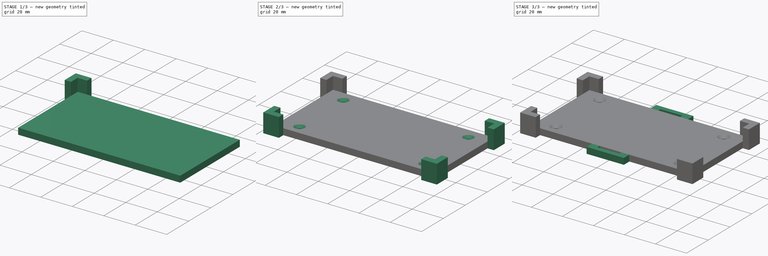
[diagram: build sequence overview — one tinted view per stage of 3, left to right]
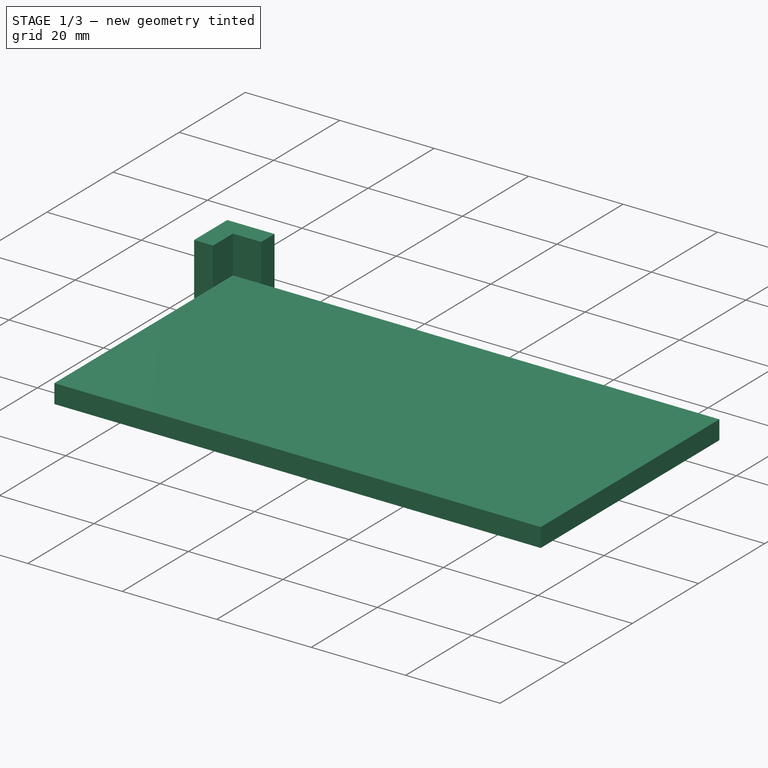
[diagram: stage 1 of 3 — iso view after this stage's code; geometry added in this stage tinted green]
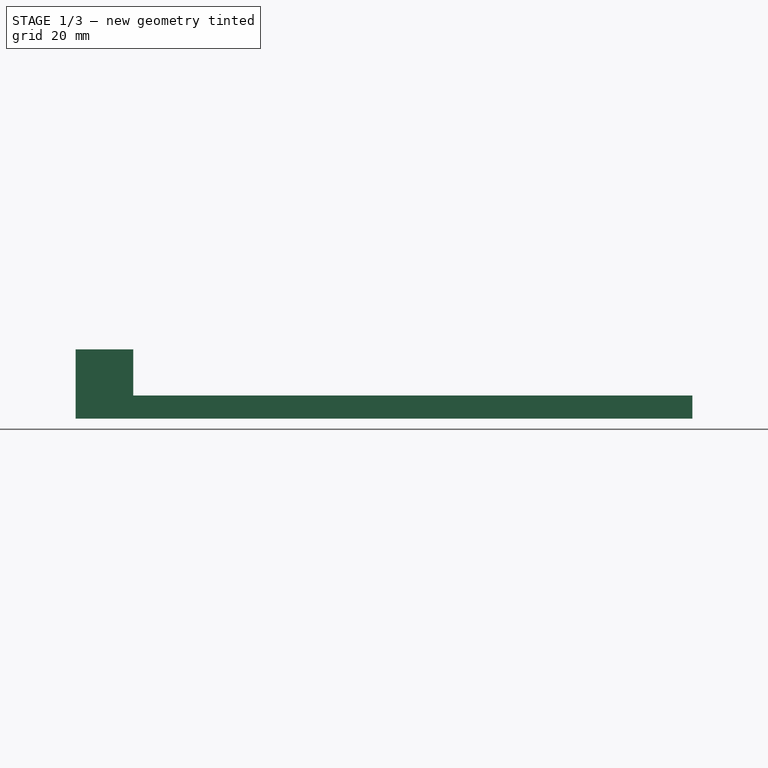
[diagram: stage 1 of 3 — front view after this stage's code; geometry added in this stage tinted green]
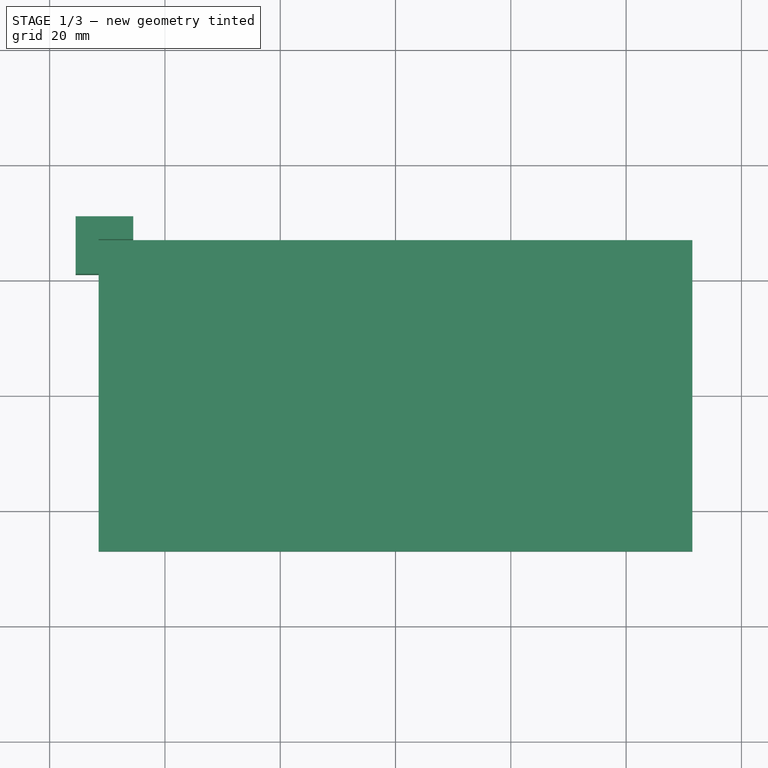
[diagram: stage 1 of 3 — top view after this stage's code; geometry added in this stage tinted green]
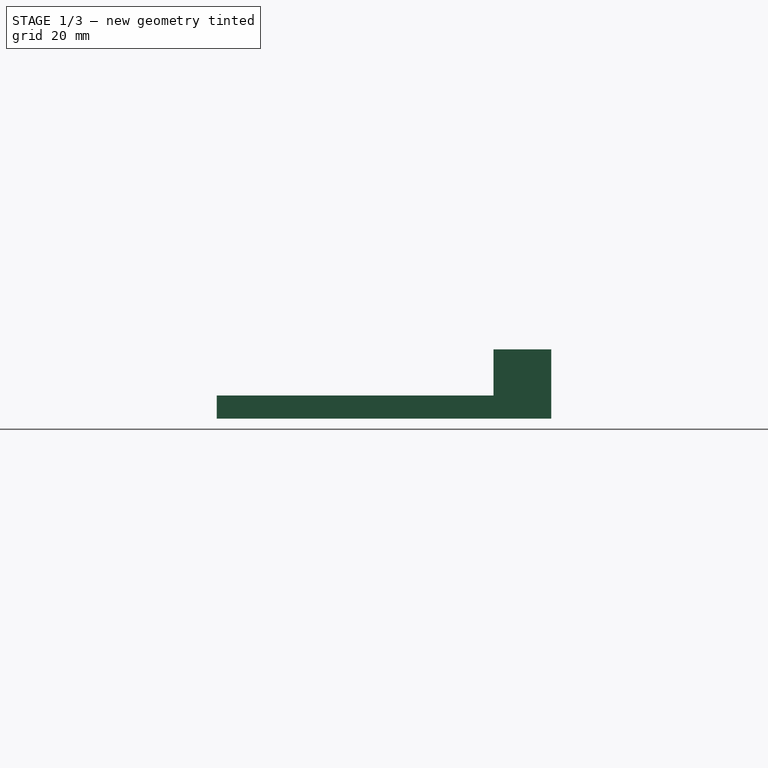
[diagram: stage 1 of 3 — right view after this stage's code; geometry added in this stage tinted green]
FCSTD DOCUMENT  (FreeCAD 0.19R24267 (Git))
Label: jlink-mount
License: All rights reserved
LicenseURL: http://en.wikipedia.org/wiki/All_rights_reserved
objects: Sketcher::SketchObject×4, PartDesign::Pad×3, PartDesign::Mirrored×2, PartDesign::PolarPattern×1, PartDesign::MultiTransform×1, PartDesign::Hole×1, PartDesign::Body×1
note: 17 computed .brp shape members not serialized (recipe doc carries the construction recipe); baked Part::Feature solids carry a one-line shape summary decoded from their .brp

FEATURE [Sketcher::SketchObject] Sketch
  FullyConstrained = true
  MapMode = 5
  Support = -> [XY_Plane]
  sketch-geometry (4):
    g0: LineSegment StartX=-51.5 StartY=-27 StartZ=0 EndX=51.5 EndY=-27 EndZ=0
    g1: LineSegment StartX=51.5 StartY=-27 StartZ=0 EndX=51.5 EndY=27 EndZ=0
    g2: LineSegment StartX=51.5 StartY=27 StartZ=0 EndX=-51.5 EndY=27 EndZ=0
    g3: LineSegment StartX=-51.5 StartY=27 StartZ=0 EndX=-51.5 EndY=-27 EndZ=0
  constraints (11):
    c: Coincident(g0,g1)
    c: Coincident(g1,g2)
    c: Coincident(g2,g3)
    c: Coincident(g3,g0)
    c: Horizontal(g0)
    c: Horizontal(g2)
    c: Vertical(g1)
    c: Vertical(g3)
    c: Symmetric(g0,g1,g-1)
    c: DistanceX(g2,g2) = 103
    c: DistanceY(g3,g3) = 54
FEATURE [PartDesign::Pad] Pad  label="plate"
  Direction = (1,1,1)
  Length = 4
  Length2 = 100
  Profile = -> Sketch
  Type = 0
FEATURE [Sketcher::SketchObject] Sketch001
  ExternalGeometry = -> [Sketch]
  FullyConstrained = true
  MapMode = 5
  Support = -> [XY_Plane]
  sketch-geometry (6):
    g0: LineSegment StartX=-51.5 StartY=21 StartZ=0 EndX=-51.5 EndY=27 EndZ=0
    g1: LineSegment StartX=-51.5 StartY=27 StartZ=0 EndX=-45.5 EndY=27 EndZ=0
    g2: LineSegment StartX=-45.5 StartY=27 StartZ=0 EndX=-45.5 EndY=31 EndZ=0
    g3: LineSegment StartX=-45.5 StartY=31 StartZ=0 EndX=-55.5 EndY=31 EndZ=0
    g4: LineSegment StartX=-55.5 StartY=31 StartZ=0 EndX=-55.5 EndY=21 EndZ=0
    g5: LineSegment StartX=-55.5 StartY=21 StartZ=0 EndX=-51.5 EndY=21 EndZ=0
  constraints (17):
    c: Vertical(g0)
    c: Coincident(g1,g0)
    c: Horizontal(g1)
    c: Vertical(g2)
    c: Horizontal(g3)
    c: Vertical(g4)
    c: Coincident(g5,g4)
    c: Coincident(g5,g0)
    c: Horizontal(g5)
    c: Coincident(g4,g3)
    c: Coincident(g3,g2)
    c: Coincident(g1,g2)
    c: Equal(g5,g2)
    c: Equal(g1,g0)
    c: DistanceY(g2,g2) = 4
    c: DistanceY(g0,g0) = 6
    c: Coincident(g-4,g0)
FEATURE [PartDesign::Pad] Pad001  label="corner"
  BaseFeature = -> Pad
  Direction = (1,1,1)
  Length = 12
  Length2 = 100
  Profile = -> Sketch001
  Type = 0
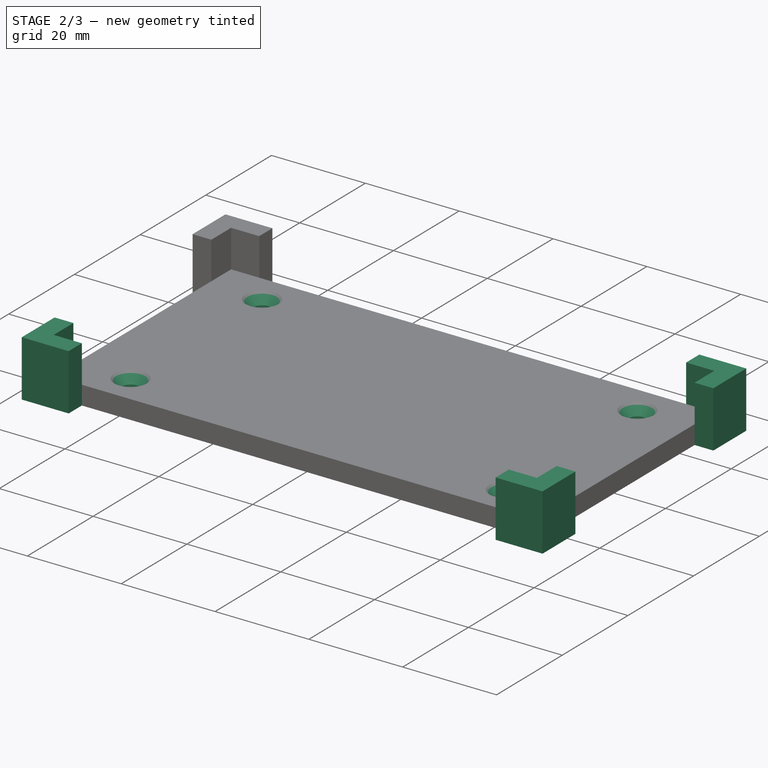
[diagram: stage 2 of 3 — iso view after this stage's code; geometry added in this stage tinted green]
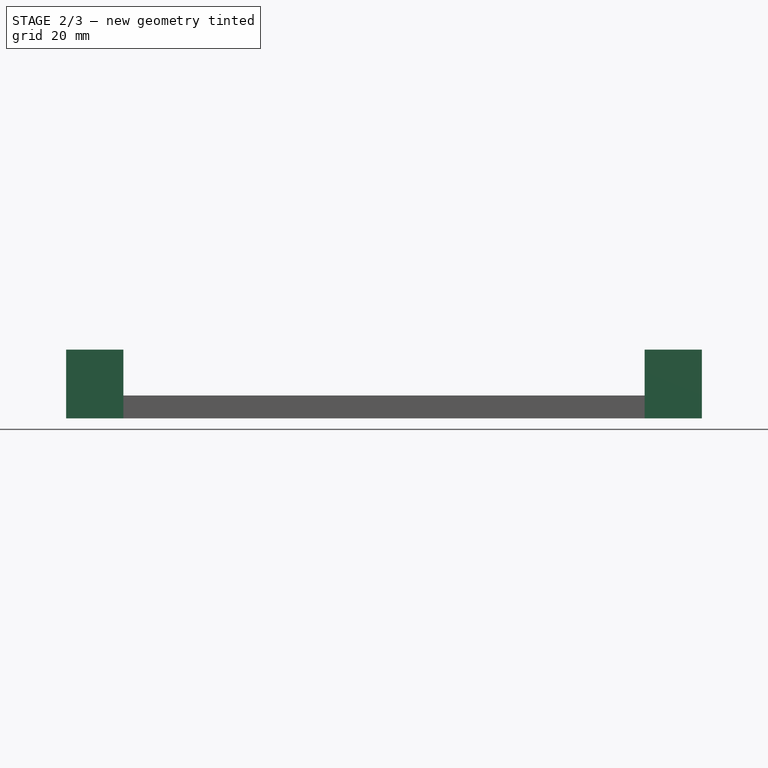
[diagram: stage 2 of 3 — front view after this stage's code; geometry added in this stage tinted green]
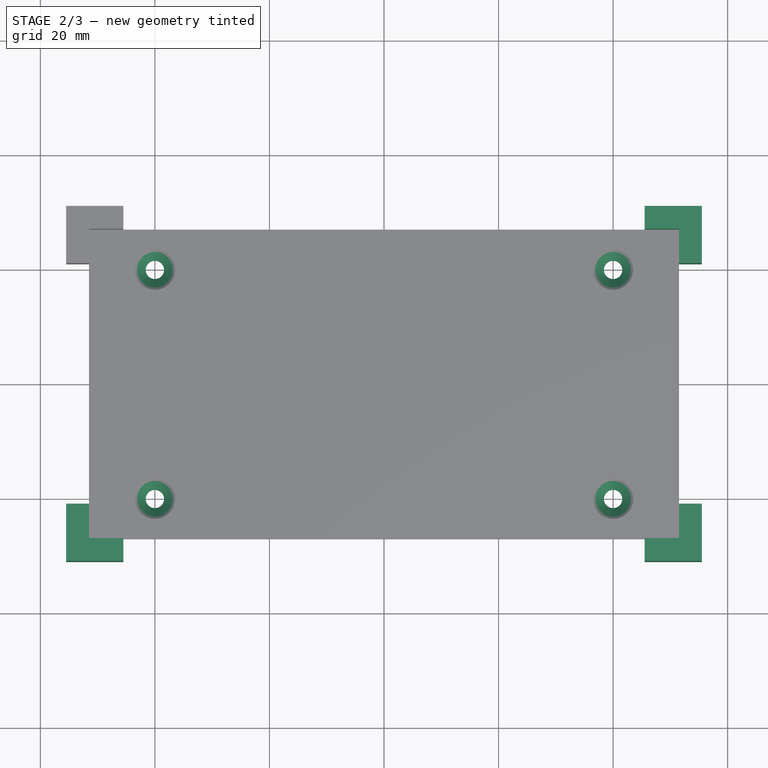
[diagram: stage 2 of 3 — top view after this stage's code; geometry added in this stage tinted green]
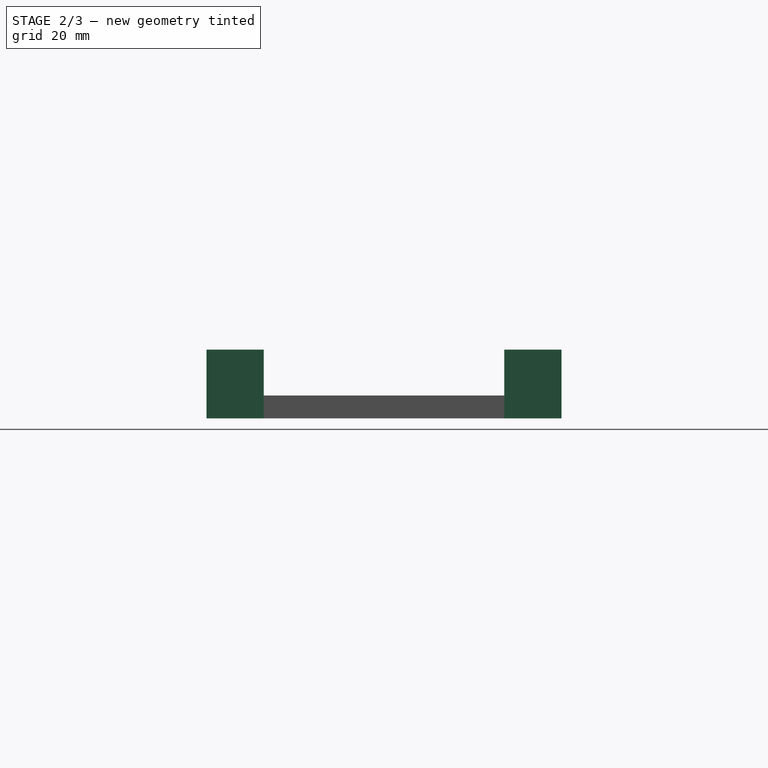
[diagram: stage 2 of 3 — right view after this stage's code; geometry added in this stage tinted green]
FEATURE [PartDesign::Mirrored] Mirrored
  MirrorPlane = -> Sketch001 [V_Axis]
FEATURE [PartDesign::PolarPattern] PolarPattern
  Angle = 360
  Axis = -> Sketch001 [N_Axis]
  Occurrences = 2
FEATURE [PartDesign::MultiTransform] MultiTransform
  BaseFeature = -> Pad001
  Originals = -> [Pad001]
  Transformations = -> [Mirrored,PolarPattern]
FEATURE [Sketcher::SketchObject] Sketch003
  AttachmentOffset = pos=(0,0,4) rot=(0,0,1;0rad)
  FullyConstrained = true
  MapMode = 5
  Placement = pos=(0,0,4) rot=(0,0,1;0rad)
  Support = -> [XY_Plane]
  sketch-geometry (8):
    g0: LineSegment StartX=-40 StartY=-20 StartZ=0 EndX=40 EndY=-20 EndZ=0
    g1: LineSegment StartX=40 StartY=-20 StartZ=0 EndX=40 EndY=20 EndZ=0
    g2: LineSegment StartX=40 StartY=20 StartZ=0 EndX=-40 EndY=20 EndZ=0
    g3: LineSegment StartX=-40 StartY=20 StartZ=0 EndX=-40 EndY=-20 EndZ=0
    g4: Circle CenterX=-40 CenterY=20 CenterZ=0 NormalX=0 NormalY=0 NormalZ=1 AngleXU=0 Radius=1.5
    g5: Circle CenterX=40 CenterY=20 CenterZ=0 NormalX=0 NormalY=0 NormalZ=1 AngleXU=0 Radius=1.5
    g6: Circle CenterX=40 CenterY=-20 CenterZ=0 NormalX=0 NormalY=0 NormalZ=1 AngleXU=0 Radius=1.5
    g7: Circle CenterX=-40 CenterY=-20 CenterZ=0 NormalX=0 NormalY=0 NormalZ=1 AngleXU=0 Radius=1.5
  constraints (19):
    c: Coincident(g0,g1)
    c: Coincident(g1,g2)
    c: Coincident(g2,g3)
    c: Coincident(g3,g0)
    c: Horizontal(g0)
    c: Horizontal(g2)
    c: Vertical(g1)
    c: Vertical(g3)
    c: Symmetric(g0,g1,g-1)
    c: DistanceX(g2,g2) = 80
    c: DistanceY(g3,g3) = 40
    c: Coincident(g4,g2)
    c: Coincident(g5,g1)
    c: Coincident(g6,g0)
    c: Coincident(g7,g0)
    c: Equal(g4,g5)
    c: Equal(g5,g6)
    c: Equal(g6,g7)
    c: Diameter(g6) = 3
FEATURE [PartDesign::Hole] Hole  label="mounting holes"
  BaseFeature = -> MultiTransform
  Depth = 25
  DepthType = 1
  Diameter = 3.2
  DrillForDepth = false
  DrillPoint = 1
  DrillPointAngle = 118
  HoleCutCountersinkAngle = 90
  HoleCutCustomValues = false
  HoleCutDepth = 0
  HoleCutDiameter = 7
  HoleCutType = 2
  ModelActualThread = false
  Profile = -> Sketch003
  Tapered = false
  TaperedAngle = 90
  ThreadAngle = 0
  ThreadClass = 0
  ThreadCutOffInner = 0
  ThreadCutOffOuter = 0
  ThreadDirection = 0
  ThreadFit = 0
  ThreadPitch = 0
  ThreadSize = 0
  ThreadType = 0
  Threaded = false
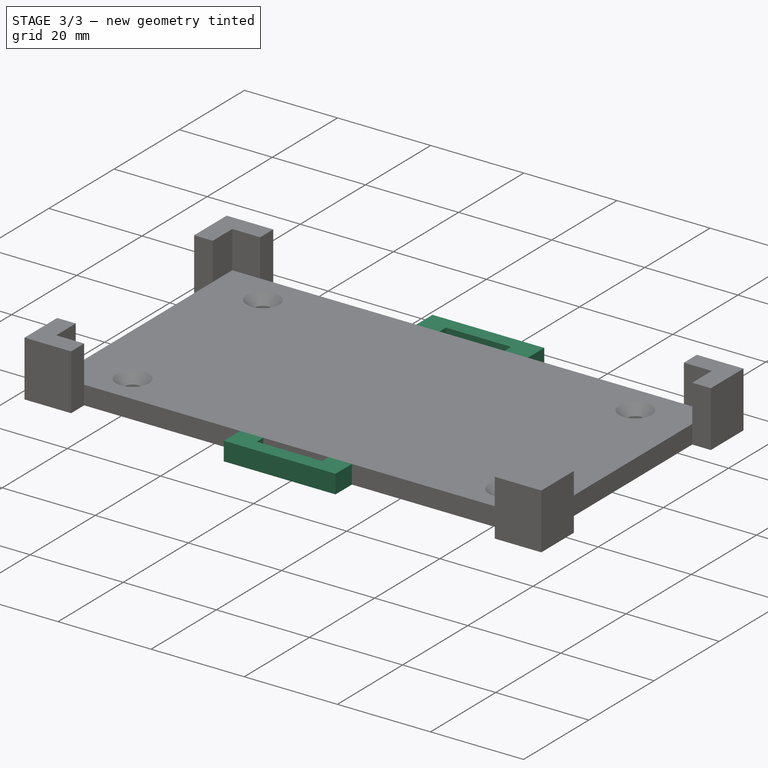
[diagram: stage 3 of 3 — iso view after this stage's code; geometry added in this stage tinted green]
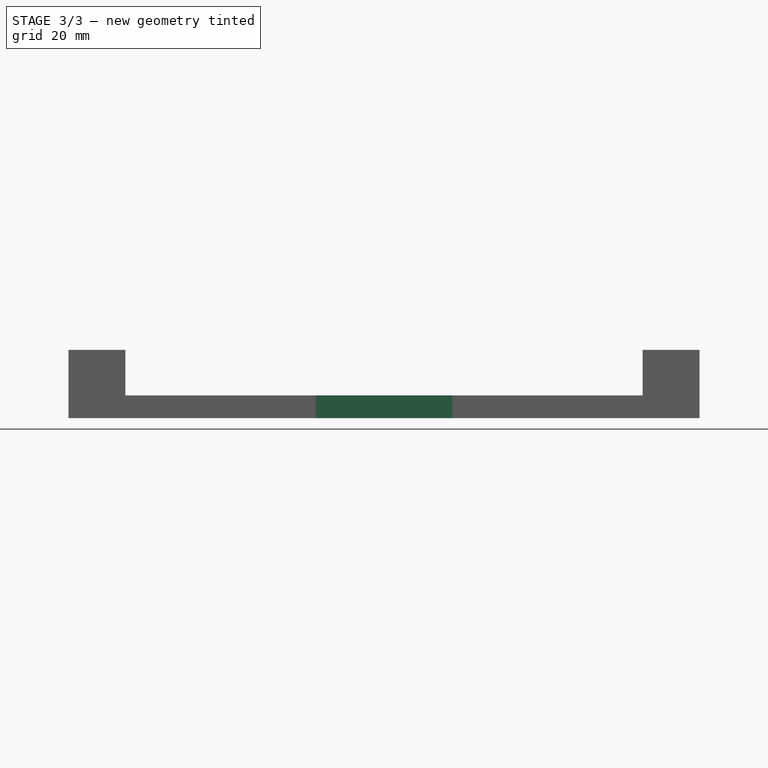
[diagram: stage 3 of 3 — front view after this stage's code; geometry added in this stage tinted green]
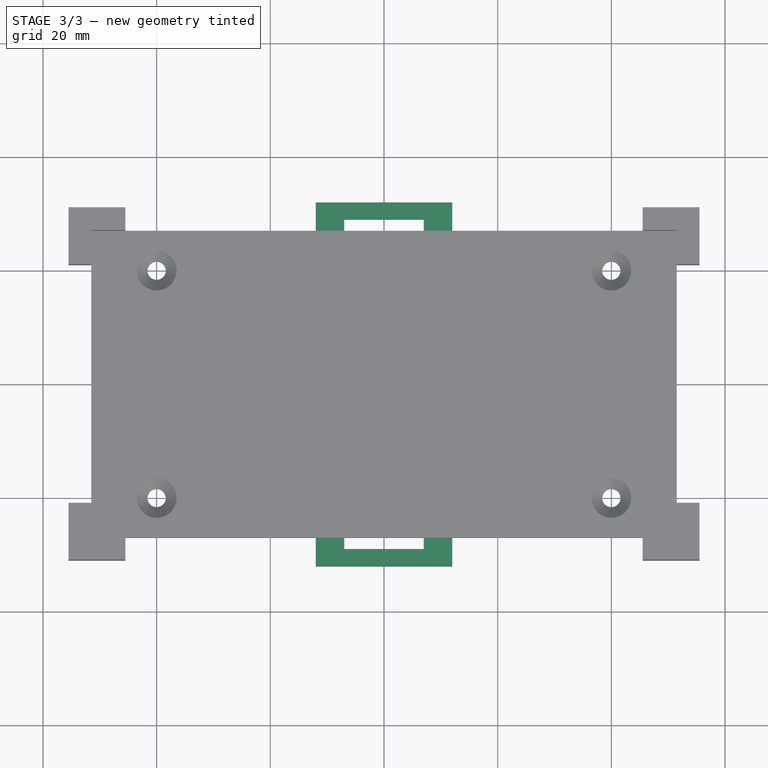
[diagram: stage 3 of 3 — top view after this stage's code; geometry added in this stage tinted green]
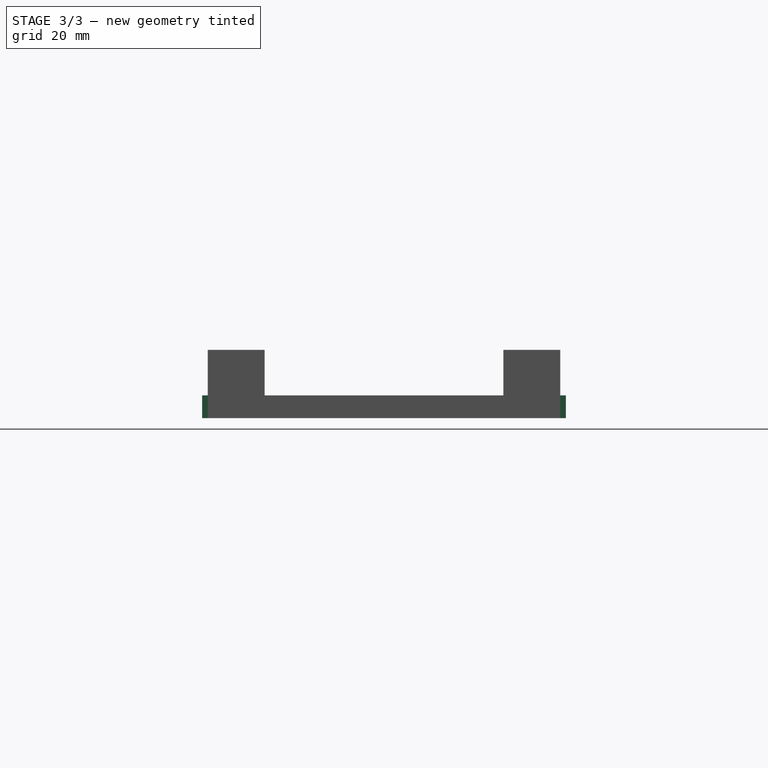
[diagram: stage 3 of 3 — right view after this stage's code; geometry added in this stage tinted green]
FEATURE [Sketcher::SketchObject] Sketch004
  ExternalGeometry = -> [Hole]
  FullyConstrained = true
  MapMode = 5
  Support = -> [XY_Plane]
  sketch-geometry (8):
    g0: LineSegment StartX=-7 StartY=27 StartZ=0 EndX=-7 EndY=29 EndZ=0
    g1: LineSegment StartX=-7 StartY=29 StartZ=0 EndX=7 EndY=29 EndZ=0
    g2: LineSegment StartX=7 StartY=29 StartZ=0 EndX=7 EndY=27 EndZ=0
    g3: LineSegment StartX=-7 StartY=27 StartZ=0 EndX=-12 EndY=27 EndZ=0
    g4: LineSegment StartX=-12 StartY=27 StartZ=0 EndX=-12 EndY=32 EndZ=0
    g5: LineSegment StartX=-12 StartY=32 StartZ=0 EndX=12 EndY=32 EndZ=0
    g6: LineSegment StartX=12 StartY=32 StartZ=0 EndX=12 EndY=27 EndZ=0
    g7: LineSegment StartX=12 StartY=27 StartZ=0 EndX=7 EndY=27 EndZ=0
  constraints (23):
    c: PointOnObject(g0,g-3)
    c: Vertical(g0)
    c: PointOnObject(g2,g-3)
    c: Vertical(g2)
    c: Coincident(g3,g0)
    c: PointOnObject(g3,g-3)
    c: Vertical(g4)
    c: Horizontal(g5)
    c: PointOnObject(g6,g-3)
    c: Vertical(g6)
    c: Coincident(g7,g2)
    c: Coincident(g1,g2)
    c: Coincident(g7,g6)
    c: Coincident(g0,g1)
    c: Coincident(g5,g6)
    c: Coincident(g4,g5)
    c: Coincident(g4,g3)
    c: Equal(g3,g7)
    c: Symmetric(g0,g1,g-2)
    c: DistanceX(g1,g1) = 14
    c: DistanceX(g3,g3) = 5
    c: DistanceY(g2,g2) = 2
    c: DistanceY(g1,g5) = 3
FEATURE [PartDesign::Pad] Pad002  label="bracket"
  BaseFeature = -> Hole
  Direction = (1,1,1)
  Length = 4
  Length2 = 100
  Profile = -> Sketch004
  Type = 0
FEATURE [PartDesign::Mirrored] Mirrored001  label="Mirror"
  BaseFeature = -> Pad002
  MirrorPlane = -> XZ_Plane
  Originals = -> [Pad002]
FEATURE [PartDesign::Body] Body
  Group = -> [Sketch,Pad,Sketch001,Pad001,MultiTransform,Mirrored,PolarPattern,Sketch003,Hole,Sketch004,Pad002,Mirrored001]
  Origin = -> Origin
  Tip = -> Mirrored001
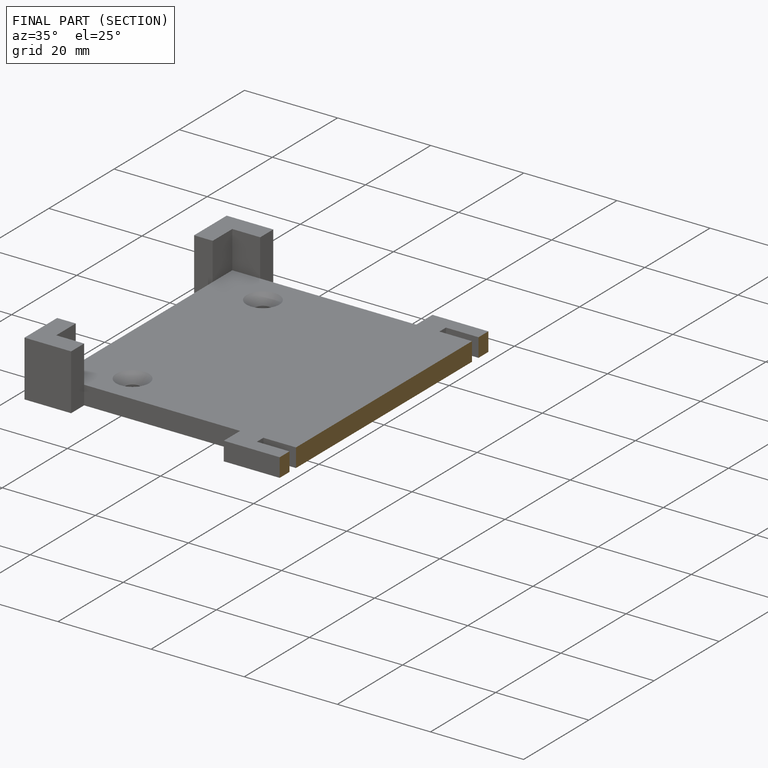
[diagram: finished part — half-section view (interior)]
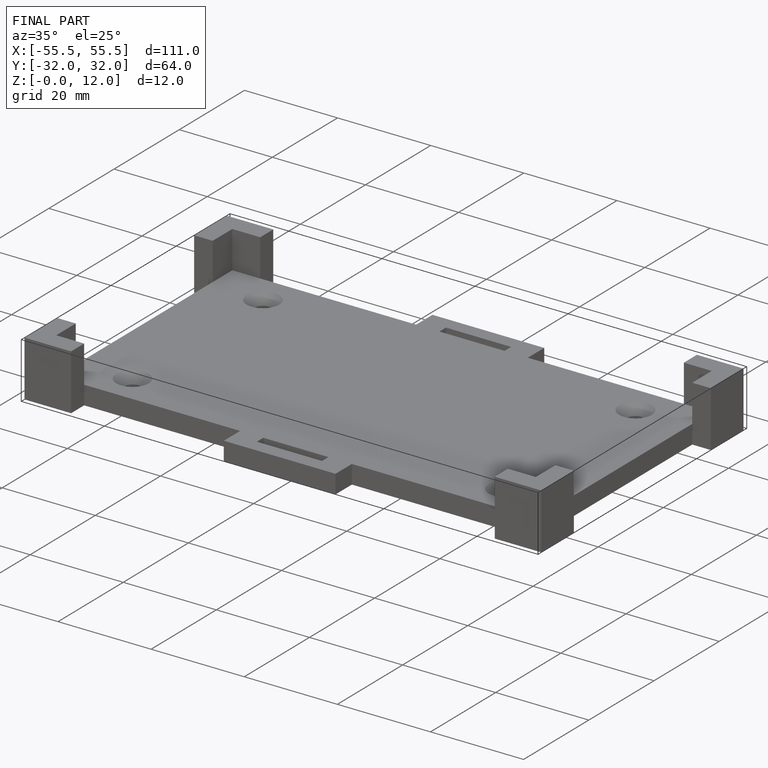
[diagram: finished part — iso view with bounding-box wireframe]
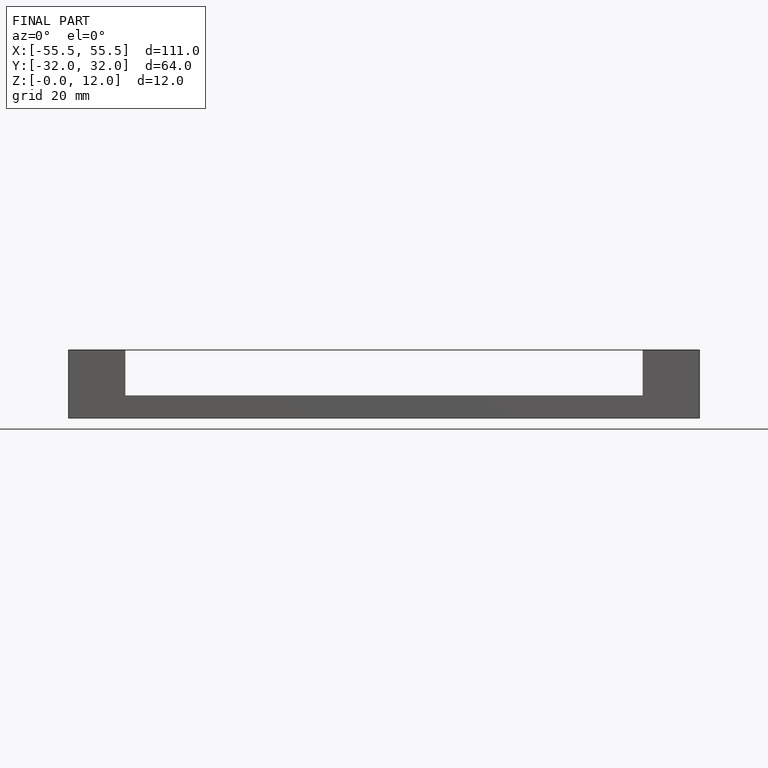
[diagram: finished part — front view with bounding-box wireframe]
